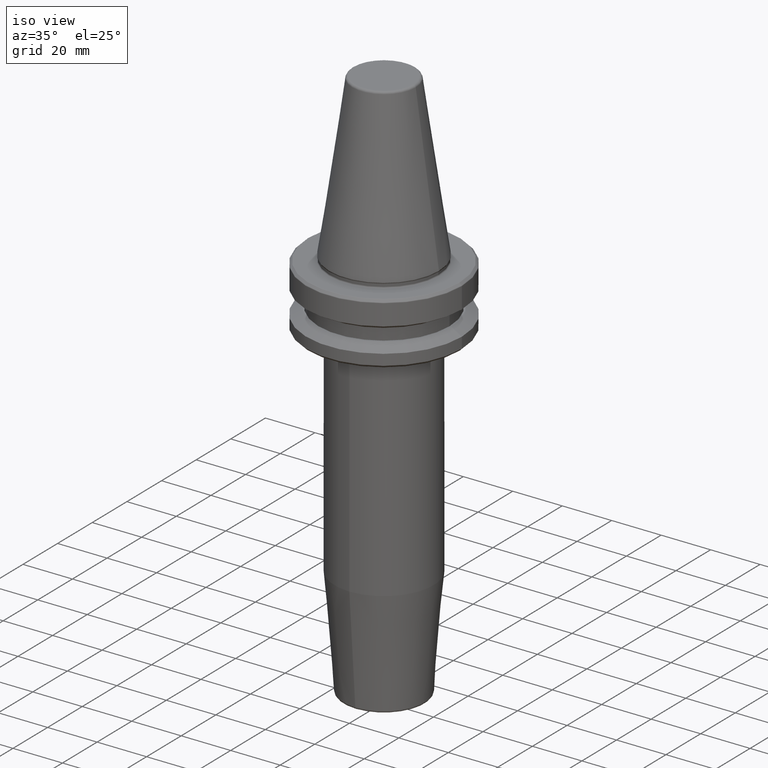
[diagram: clean part render]
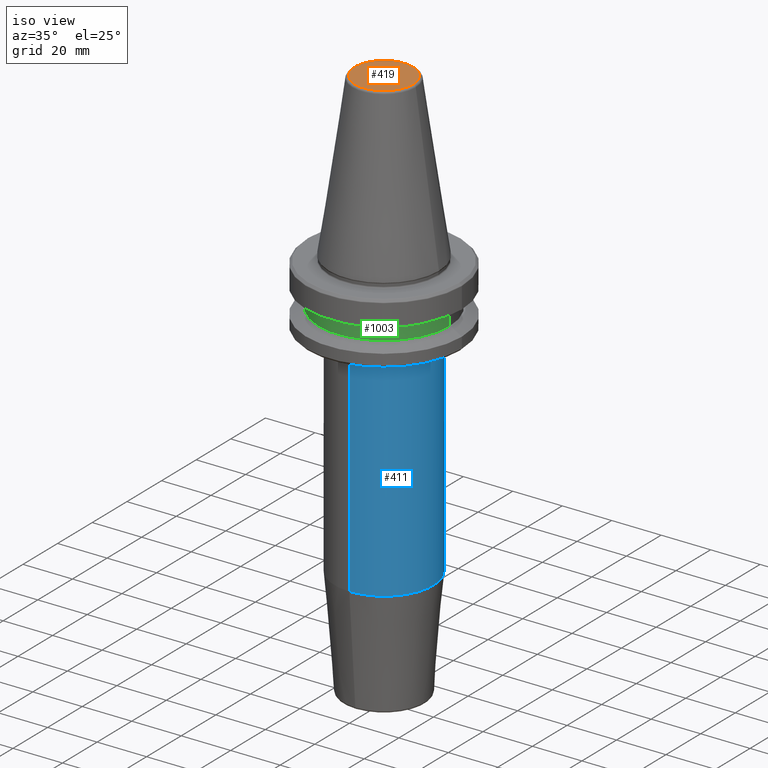
[diagram: same view with three faces highlighted in distinct colors, each labeled with its STEP entity id]
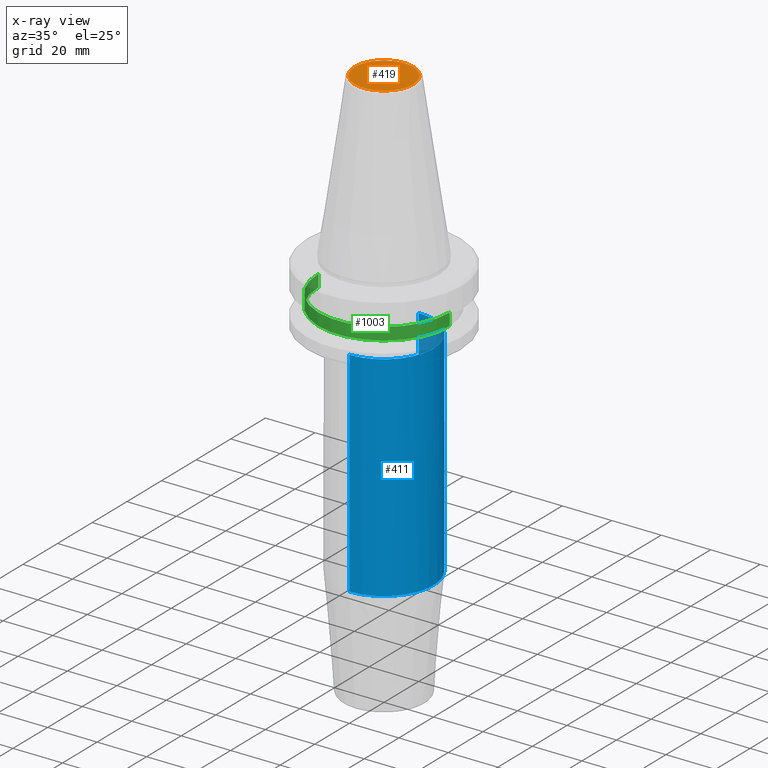
[diagram: x-ray of the same camera — body ghosted, the three highlighted faces saturated]
A machine part, iso view with three faces highlighted in distinct colors.
The next image is the same camera in x-ray (body ghosted, the three faces saturated) — at least one of them is partly hidden behind the body in this view.
Their STEP definitions:

[orange] entity #419 — the highlighted planar face has unit normal (0, -0, 1).
#22 = AXIS2_PLACEMENT_3D ( 'NONE', #1217, #704, #146 ) ;
#77 = CARTESIAN_POINT ( 'NONE',  ( 0.0000000000000000000, 0.0000000000000000000, 65.40000000000000600 ) ) ;
#93 = AXIS2_PLACEMENT_3D ( 'NONE', #77, #843, #1255 ) ;
#125 = CARTESIAN_POINT ( 'NONE',  ( -11.82266672057007100, 1.508450503654657300E-015, 65.40000000000000600 ) ) ;
#140 = CIRCLE ( 'NONE', #911, 11.82266672057007100 ) ;
#146 = DIRECTION ( 'NONE',  ( 1.000000000000000000, 0.0000000000000000000, 0.0000000000000000000 ) ) ;
#195 = CARTESIAN_POINT ( 'NONE',  ( 0.0000000000000000000, 0.0000000000000000000, 65.40000000000000600 ) ) ;
#299 = PLANE ( 'NONE',  #22 ) ;
#403 = EDGE_CURVE ( 'NONE', #614, #892, #140, .T. ) ;
#419 = ADVANCED_FACE ( 'NONE', ( #787 ), #299, .T. ) ;
#421 = DIRECTION ( 'NONE',  ( 1.000000000000000000, 0.0000000000000000000, 0.0000000000000000000 ) ) ;
#468 = CIRCLE ( 'NONE', #93, 11.82266672057007100 ) ;
#521 = DIRECTION ( 'NONE',  ( -0.0000000000000000000, -0.0000000000000000000, 1.000000000000000000 ) ) ;
#560 = CARTESIAN_POINT ( 'NONE',  ( 11.82266672057007100, 0.0000000000000000000, 65.40000000000000600 ) ) ;
#614 = VERTEX_POINT ( 'NONE', #560 ) ;
#704 = DIRECTION ( 'NONE',  ( 0.0000000000000000000, -0.0000000000000000000, 1.000000000000000000 ) ) ;
#787 = FACE_OUTER_BOUND ( 'NONE', #1020, .T. ) ;
#843 = DIRECTION ( 'NONE',  ( -0.0000000000000000000, -0.0000000000000000000, 1.000000000000000000 ) ) ;
#892 = VERTEX_POINT ( 'NONE', #125 ) ;
#911 = AXIS2_PLACEMENT_3D ( 'NONE', #195, #521, #421 ) ;
#969 = ORIENTED_EDGE ( 'NONE', *, *, #1016, .T. ) ;
#998 = ORIENTED_EDGE ( 'NONE', *, *, #403, .T. ) ;
#1016 = EDGE_CURVE ( 'NONE', #892, #614, #468, .T. ) ;
#1020 = EDGE_LOOP ( 'NONE', ( #998, #969 ) ) ;
#1217 = CARTESIAN_POINT ( 'NONE',  ( 0.0000000000000000000, 0.0000000000000000000, 65.40000000000000600 ) ) ;
#1255 = DIRECTION ( 'NONE',  ( 1.000000000000000000, 0.0000000000000000000, 0.0000000000000000000 ) ) ;

[blue] entity #411 — the highlighted cylindrical surface (partial cylindrical patch) has radius 20 mm, axis along (-0, 0, -1).
#52 = CARTESIAN_POINT ( 'NONE',  ( 0.0000000000000000000, 1.510090789926056700E-016, -28.99999999999999600 ) ) ;
#169 = LINE ( 'NONE', #1279, #919 ) ;
#170 = EDGE_CURVE ( 'NONE', #328, #656, #1081, .T. ) ;
#177 = CARTESIAN_POINT ( 'NONE',  ( 0.0000000000000000000, 6.684287272280548100E-015, -115.5282834233806100 ) ) ;
#220 = DIRECTION ( 'NONE',  ( 0.0000000000000000000, 0.0000000000000000000, -1.000000000000000000 ) ) ;
#247 = CARTESIAN_POINT ( 'NONE',  ( 0.0000000000000000000, -19.99999999999998900, -115.5282834233806100 ) ) ;
#285 = DIRECTION ( 'NONE',  ( 0.0000000000000000000, 1.000000000000000000, 0.0000000000000000000 ) ) ;
#301 = FACE_OUTER_BOUND ( 'NONE', #716, .T. ) ;
#320 = CARTESIAN_POINT ( 'NONE',  ( 19.99999999999999600, 2.722767357202047200E-015, -28.99999999999999600 ) ) ;
#328 = VERTEX_POINT ( 'NONE', #320 ) ;
#408 = DIRECTION ( 'NONE',  ( -1.000000000000000000, 0.0000000000000000000, 0.0000000000000000000 ) ) ;
#411 = ADVANCED_FACE ( 'NONE', ( #301 ), #1043, .T. ) ;
#453 = DIRECTION ( 'NONE',  ( 0.0000000000000000000, 0.0000000000000000000, -1.000000000000000000 ) ) ;
#513 = VERTEX_POINT ( 'NONE', #247 ) ;
#523 = VERTEX_POINT ( 'NONE', #897 ) ;
#554 = DIRECTION ( 'NONE',  ( -0.0000000000000000000, 7.550453949630299600E-017, -1.000000000000000000 ) ) ;
#561 = ORIENTED_EDGE ( 'NONE', *, *, #170, .T. ) ;
#569 = CARTESIAN_POINT ( 'NONE',  ( 2.449293598294706500E-015, -19.99999999999999600, -28.99999999999999600 ) ) ;
#575 = DIRECTION ( 'NONE',  ( -0.0000000000000000000, 7.550453949630299600E-017, -1.000000000000000000 ) ) ;
#599 = EDGE_CURVE ( 'NONE', #523, #748, #169, .T. ) ;
#606 = ORIENTED_EDGE ( 'NONE', *, *, #1119, .T. ) ;
#616 = ORIENTED_EDGE ( 'NONE', *, *, #1222, .T. ) ;
#656 = VERTEX_POINT ( 'NONE', #569 ) ;
#670 = CIRCLE ( 'NONE', #830, 19.99999999999999600 ) ;
#714 = DIRECTION ( 'NONE',  ( -0.0000000000000000000, 7.550453949630299600E-017, -1.000000000000000000 ) ) ;
#716 = EDGE_LOOP ( 'NONE', ( #606, #561, #616, #964, #1233 ) ) ;
#734 = AXIS2_PLACEMENT_3D ( 'NONE', #1188, #220, #408 ) ;
#741 = LINE ( 'NONE', #742, #1124 ) ;
#742 = CARTESIAN_POINT ( 'NONE',  ( 2.449293598294706100E-015, -19.99999999999998600, -160.0000000000000000 ) ) ;
#748 = VERTEX_POINT ( 'NONE', #903 ) ;
#830 = AXIS2_PLACEMENT_3D ( 'NONE', #52, #453, #885 ) ;
#885 = DIRECTION ( 'NONE',  ( -1.000000000000000000, 0.0000000000000000000, 0.0000000000000000000 ) ) ;
#897 = CARTESIAN_POINT ( 'NONE',  ( 0.0000000000000000000, 19.99999999999999600, -28.99999999999999600 ) ) ;
#903 = CARTESIAN_POINT ( 'NONE',  ( 2.449293598294706100E-015, 20.00000000000000400, -115.5282834233806100 ) ) ;
#919 = VECTOR ( 'NONE', #714, 1000.000000000000000 ) ;
#964 = ORIENTED_EDGE ( 'NONE', *, *, #997, .F. ) ;
#997 = EDGE_CURVE ( 'NONE', #748, #513, #1247, .T. ) ;
#1043 = CYLINDRICAL_SURFACE ( 'NONE', #1232, 19.99999999999999600 ) ;
#1058 = DIRECTION ( 'NONE',  ( -0.0000000000000000000, 7.550453949630299600E-017, -1.000000000000000000 ) ) ;
#1073 = CARTESIAN_POINT ( 'NONE',  ( 0.0000000000000000000, 1.004210375300829800E-014, -160.0000000000000000 ) ) ;
#1081 = CIRCLE ( 'NONE', #734, 19.99999999999999600 ) ;
#1115 = AXIS2_PLACEMENT_3D ( 'NONE', #177, #1058, #285 ) ;
#1119 = EDGE_CURVE ( 'NONE', #523, #328, #670, .T. ) ;
#1124 = VECTOR ( 'NONE', #554, 1000.000000000000000 ) ;
#1188 = CARTESIAN_POINT ( 'NONE',  ( 0.0000000000000000000, 1.510090789926056700E-016, -28.99999999999999600 ) ) ;
#1191 = DIRECTION ( 'NONE',  ( 0.0000000000000000000, 1.000000000000000000, 0.0000000000000000000 ) ) ;
#1222 = EDGE_CURVE ( 'NONE', #656, #513, #741, .T. ) ;
#1232 = AXIS2_PLACEMENT_3D ( 'NONE', #1073, #575, #1191 ) ;
#1233 = ORIENTED_EDGE ( 'NONE', *, *, #599, .F. ) ;
#1247 = CIRCLE ( 'NONE', #1115, 19.99999999999999600 ) ;
#1279 = CARTESIAN_POINT ( 'NONE',  ( 0.0000000000000000000, 20.00000000000000700, -160.0000000000000000 ) ) ;

[green] entity #1003 — the highlighted cylindrical surface (partial cylindrical patch) has radius 26.5 mm, axis along (-0, -0, 1).
#32 = AXIS2_PLACEMENT_3D ( 'NONE', #181, #771, #384 ) ;
#67 = ORIENTED_EDGE ( 'NONE', *, *, #789, .F. ) ;
#68 = ORIENTED_EDGE ( 'NONE', *, *, #955, .T. ) ;
#71 = DIRECTION ( 'NONE',  ( -0.0000000000000000000, -0.0000000000000000000, 1.000000000000000000 ) ) ;
#107 = CARTESIAN_POINT ( 'NONE',  ( -26.50000000000000000, 3.245314017740485800E-015, -14.10000000000000100 ) ) ;
#168 = AXIS2_PLACEMENT_3D ( 'NONE', #863, #71, #650 ) ;
#181 = CARTESIAN_POINT ( 'NONE',  ( 0.0000000000000000000, 0.0000000000000000000, -14.10000000000000100 ) ) ;
#207 = CIRCLE ( 'NONE', #32, 26.50000000000000000 ) ;
#213 = ORIENTED_EDGE ( 'NONE', *, *, #1024, .F. ) ;
#217 = CARTESIAN_POINT ( 'NONE',  ( 26.50000000000000000, 0.0000000000000000000, -14.10000000000000100 ) ) ;
#287 = VERTEX_POINT ( 'NONE', #1112 ) ;
#295 = VERTEX_POINT ( 'NONE', #107 ) ;
#305 = VECTOR ( 'NONE', #522, 1000.000000000000000 ) ;
#384 = DIRECTION ( 'NONE',  ( 1.000000000000000000, 0.0000000000000000000, 0.0000000000000000000 ) ) ;
#457 = DIRECTION ( 'NONE',  ( -0.0000000000000000000, -0.0000000000000000000, 1.000000000000000000 ) ) ;
#464 = DIRECTION ( 'NONE',  ( 1.000000000000000000, 0.0000000000000000000, 0.0000000000000000000 ) ) ;
#522 = DIRECTION ( 'NONE',  ( -0.0000000000000000000, -0.0000000000000000000, 1.000000000000000000 ) ) ;
#558 = LINE ( 'NONE', #949, #305 ) ;
#650 = DIRECTION ( 'NONE',  ( 1.000000000000000000, 0.0000000000000000000, 0.0000000000000000000 ) ) ;
#651 = CARTESIAN_POINT ( 'NONE',  ( -26.50000000000000000, 3.245314017740485800E-015, 69.75694866325665100 ) ) ;
#665 = CARTESIAN_POINT ( 'NONE',  ( 0.0000000000000000000, 0.0000000000000000000, -19.10000000000000500 ) ) ;
#738 = VECTOR ( 'NONE', #908, 1000.000000000000000 ) ;
#765 = EDGE_CURVE ( 'NONE', #865, #287, #1027, .T. ) ;
#771 = DIRECTION ( 'NONE',  ( -0.0000000000000000000, -0.0000000000000000000, 1.000000000000000000 ) ) ;
#789 = EDGE_CURVE ( 'NONE', #865, #295, #1257, .T. ) ;
#800 = VERTEX_POINT ( 'NONE', #217 ) ;
#852 = EDGE_LOOP ( 'NONE', ( #67, #973, #68, #213 ) ) ;
#863 = CARTESIAN_POINT ( 'NONE',  ( 0.0000000000000000000, 0.0000000000000000000, 69.75694866325665100 ) ) ;
#865 = VERTEX_POINT ( 'NONE', #1142 ) ;
#908 = DIRECTION ( 'NONE',  ( -0.0000000000000000000, -0.0000000000000000000, 1.000000000000000000 ) ) ;
#934 = AXIS2_PLACEMENT_3D ( 'NONE', #665, #457, #464 ) ;
#949 = CARTESIAN_POINT ( 'NONE',  ( 26.50000000000000000, 0.0000000000000000000, 69.75694866325665100 ) ) ;
#955 = EDGE_CURVE ( 'NONE', #287, #800, #558, .T. ) ;
#973 = ORIENTED_EDGE ( 'NONE', *, *, #765, .T. ) ;
#981 = FACE_OUTER_BOUND ( 'NONE', #852, .T. ) ;
#1003 = ADVANCED_FACE ( 'NONE', ( #981 ), #1216, .T. ) ;
#1024 = EDGE_CURVE ( 'NONE', #295, #800, #207, .T. ) ;
#1027 = CIRCLE ( 'NONE', #934, 26.50000000000000000 ) ;
#1112 = CARTESIAN_POINT ( 'NONE',  ( 26.50000000000000000, 0.0000000000000000000, -19.10000000000000500 ) ) ;
#1142 = CARTESIAN_POINT ( 'NONE',  ( -26.50000000000000000, 3.245314017740485800E-015, -19.10000000000000500 ) ) ;
#1216 = CYLINDRICAL_SURFACE ( 'NONE', #168, 26.50000000000000000 ) ;
#1257 = LINE ( 'NONE', #651, #738 ) ;